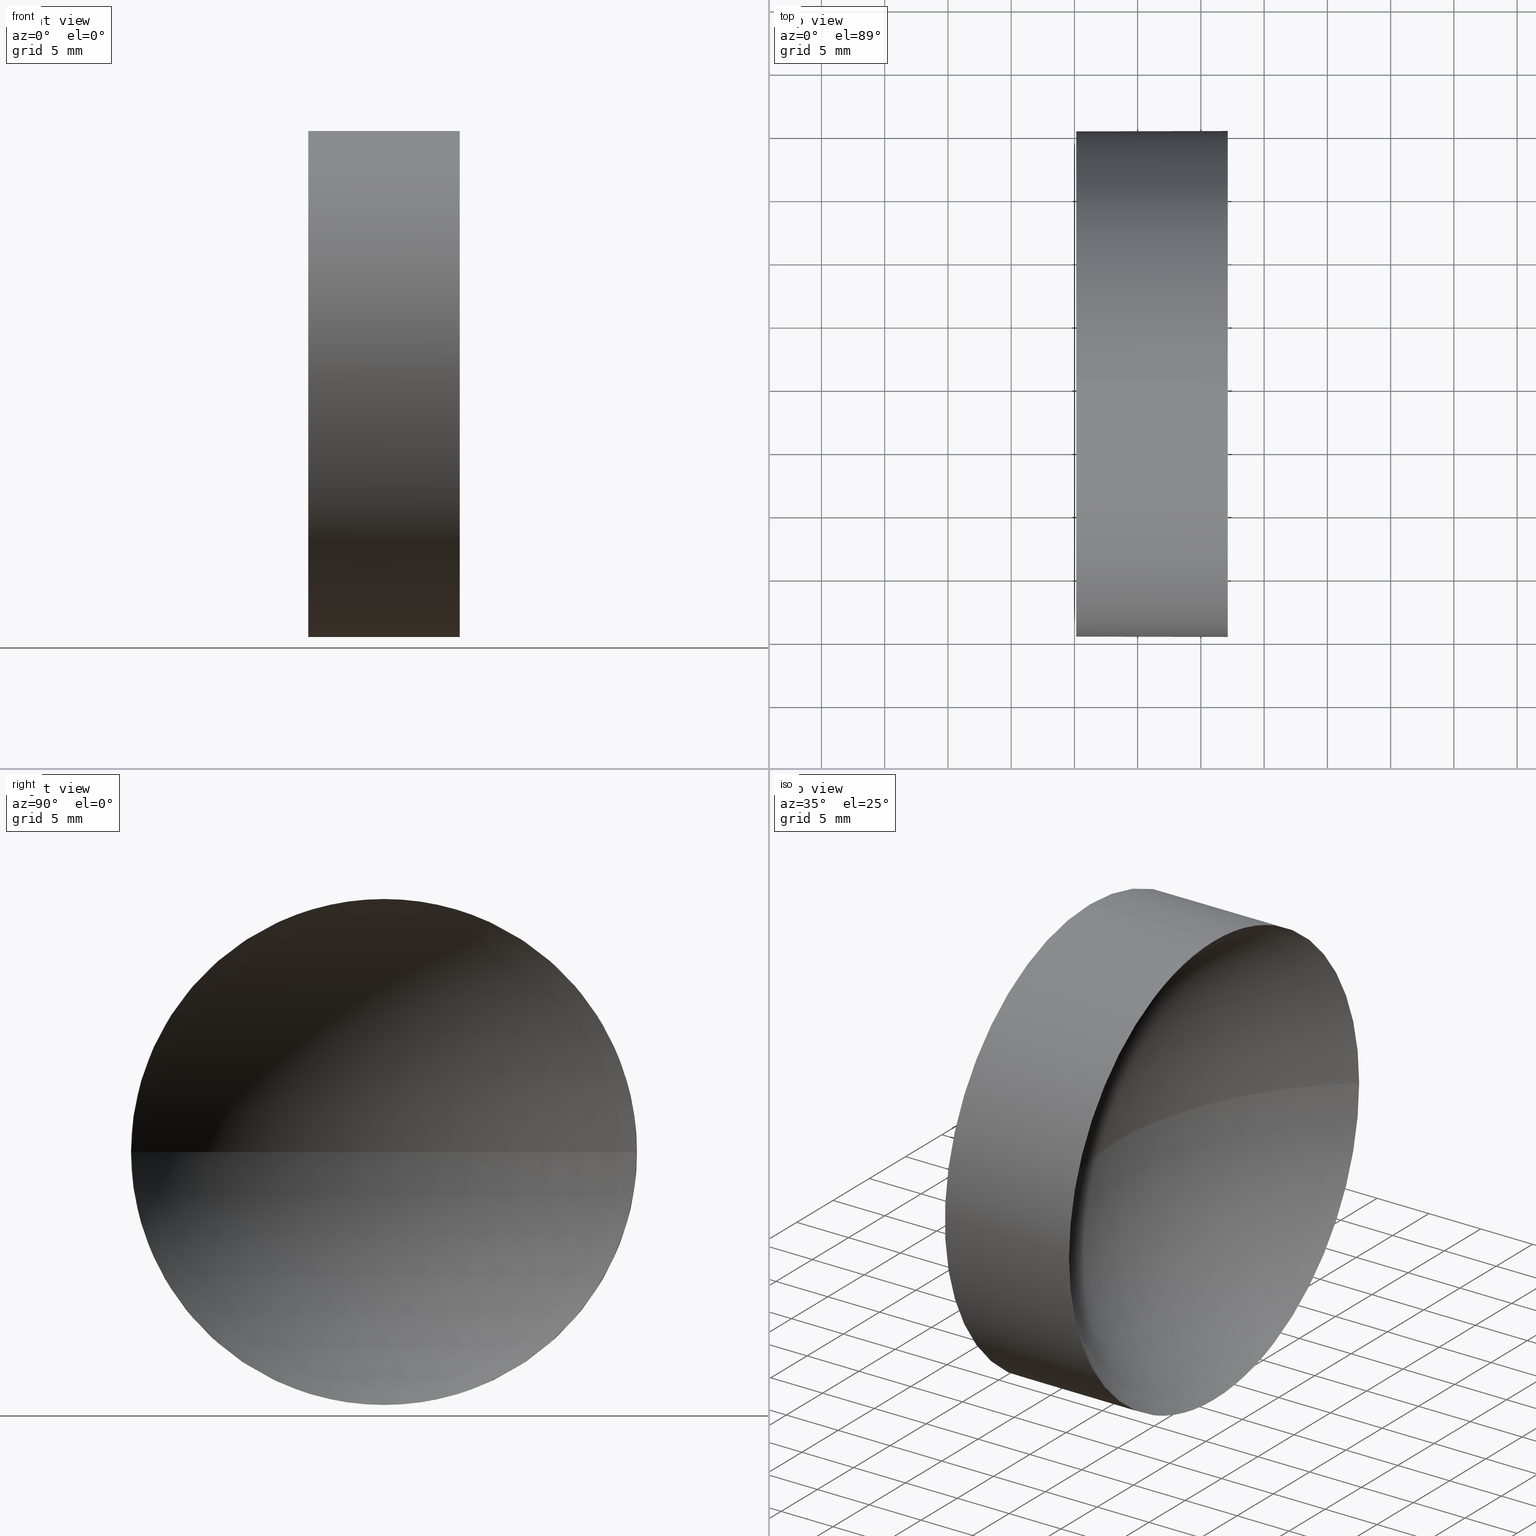
[diagram: canonical four-view strip — front | top / right | iso, engineering-drawing reading convention]
A machine part, canonical four-view strip (front | top / right | iso — engineering-drawing reading convention). The complete STEP part file that produces these views, byte-faithful:
ISO-10303-21;
HEADER;
FILE_DESCRIPTION (( 'STEP AP214' ),
    '1' );
FILE_NAME ('120044.STEP',
    '2019-06-17T06:40:21',
    ( '' ),
    ( '' ),
    'SwSTEP 2.0',
    'SolidWorks 2016',
    '' );
FILE_SCHEMA (( 'AUTOMOTIVE_DESIGN' ));
ENDSEC;

DATA;
#1 = CARTESIAN_POINT ( 'NONE',  ( 143.4842728140176900, 65.22153625845356800, 0.0000000000000000000 ) ) ;
#2 = PRESENTATION_LAYER_ASSIGNMENT (  '', '', ( #108 ) ) ;
#3 = ORIENTED_EDGE ( 'NONE', *, *, #91, .T. ) ;
#4 = DIRECTION ( 'NONE',  ( 0.0000000000000000000, 0.0000000000000000000, -1.000000000000000000 ) ) ;
#5 = DIRECTION ( 'NONE',  ( 0.0000000000000000000, 0.0000000000000000000, 1.000000000000000000 ) ) ;
#6 = ADVANCED_FACE ( 'NONE', ( #166 ), #178, .F. ) ;
#7 = FACE_OUTER_BOUND ( 'NONE', #183, .T. ) ;
#8 = UNCERTAINTY_MEASURE_WITH_UNIT (LENGTH_MEASURE( 1.000000000000000100E-005 ), #143, 'distance_accuracy_value', 'NONE');
#9 = CIRCLE ( 'NONE', #176, 19.99999999999998900 ) ;
#10 = CLOSED_SHELL ( 'NONE', ( #47, #6, #179, #98, #88 ) ) ;
#11 = SHAPE_DEFINITION_REPRESENTATION ( #21, #157 ) ;
#12 = CARTESIAN_POINT ( 'NONE',  ( 143.4842728140176900, 65.22153625845356800, 0.0000000000000000000 ) ) ;
#13 = VERTEX_POINT ( 'NONE', #185 ) ;
#14 = AXIS2_PLACEMENT_3D ( 'NONE', #170, #42, #84 ) ;
#15 = DIRECTION ( 'NONE',  ( 0.0000000000000000000, 0.0000000000000000000, 1.000000000000000000 ) ) ;
#16 = CARTESIAN_POINT ( 'NONE',  ( 115.1442728140176700, 65.22153625845356800, 0.0000000000000000000 ) ) ;
#17 = FILL_AREA_STYLE_COLOUR ( '', #40 ) ;
#18 = VERTEX_POINT ( 'NONE', #125 ) ;
#19 = DIRECTION ( 'NONE',  ( 0.0000000000000000000, 0.0000000000000000000, 1.000000000000000000 ) ) ;
#20 =( NAMED_UNIT ( * ) SI_UNIT ( $, .STERADIAN. ) SOLID_ANGLE_UNIT ( ) );
#21 = PRODUCT_DEFINITION_SHAPE ( 'NONE', 'NONE',  #23 ) ;
#22 = EDGE_CURVE ( 'NONE', #126, #138, #29, .T. ) ;
#23 = PRODUCT_DEFINITION ( 'δ֪', '', #89, #135 ) ;
#24 = EDGE_CURVE ( 'NONE', #64, #52, #163, .T. ) ;
#25 = ORIENTED_EDGE ( 'NONE', *, *, #65, .F. ) ;
#26 = EDGE_LOOP ( 'NONE', ( #77, #120, #106, #25 ) ) ;
#27 = EDGE_LOOP ( 'NONE', ( #150, #94 ) ) ;
#28 = AXIS2_PLACEMENT_3D ( 'NONE', #128, #155, #15 ) ;
#29 = LINE ( 'NONE', #136, #62 ) ;
#30 = PRODUCT_CONTEXT ( 'NONE', #73, 'mechanical' ) ;
#31 = CARTESIAN_POINT ( 'NONE',  ( 143.4842728140176900, 65.22153625845356800, 0.0000000000000000000 ) ) ;
#32 = APPLICATION_CONTEXT ( 'automotive_design' ) ;
#33 = PRESENTATION_STYLE_ASSIGNMENT (( #70 ) ) ;
#34 = ORIENTED_EDGE ( 'NONE', *, *, #76, .T. ) ;
#35 = AXIS2_PLACEMENT_3D ( 'NONE', #66, #169, #154 ) ;
#36 = COLOUR_RGB ( '',1.000000000000000000, 1.000000000000000000, 1.000000000000000000 ) ;
#37 = MECHANICAL_DESIGN_GEOMETRIC_PRESENTATION_REPRESENTATION (  '', ( #108 ), #57 ) ;
#38 = CIRCLE ( 'NONE', #35, 19.99999999999998900 ) ;
#39 = DIRECTION ( 'NONE',  ( -1.000000000000000000, -0.0000000000000000000, -0.0000000000000000000 ) ) ;
#40 = COLOUR_RGB ( '',1.000000000000000000, 1.000000000000000000, 1.000000000000000000 ) ;
#41 = AXIS2_PLACEMENT_3D ( 'NONE', #51, #39, #5 ) ;
#42 = DIRECTION ( 'NONE',  ( 1.000000000000000000, 0.0000000000000000000, 0.0000000000000000000 ) ) ;
#43 =( NAMED_UNIT ( * ) SI_UNIT ( $, .STERADIAN. ) SOLID_ANGLE_UNIT ( ) );
#44 = ORIENTED_EDGE ( 'NONE', *, *, #24, .T. ) ;
#45 = DIRECTION ( 'NONE',  ( 0.0000000000000000000, -1.224646799147353200E-016, 1.000000000000000000 ) ) ;
#46 = DIRECTION ( 'NONE',  ( 0.0000000000000000000, -1.000000000000000000, -1.224646799147353000E-016 ) ) ;
#47 = ADVANCED_FACE ( 'NONE', ( #92 ), #86, .T. ) ;
#48 = FACE_OUTER_BOUND ( 'NONE', #156, .T. ) ;
#49 = AXIS2_PLACEMENT_3D ( 'NONE', #104, #130, #102 ) ;
#50 = ORIENTED_EDGE ( 'NONE', *, *, #112, .T. ) ;
#51 = CARTESIAN_POINT ( 'NONE',  ( 103.2333421658140700, 65.22153625845356800, 0.0000000000000000000 ) ) ;
#52 = VERTEX_POINT ( 'NONE', #55 ) ;
#53 = DIRECTION ( 'NONE',  ( 0.0000000000000000000, 0.0000000000000000000, 1.000000000000000000 ) ) ;
#54 =( GEOMETRIC_REPRESENTATION_CONTEXT ( 3 ) GLOBAL_UNCERTAINTY_ASSIGNED_CONTEXT ( ( #180 ) ) GLOBAL_UNIT_ASSIGNED_CONTEXT ( ( #87, #175, #43 ) ) REPRESENTATION_CONTEXT ( 'NONE', 'WORKASPACE' ) );
#55 = CARTESIAN_POINT ( 'NONE',  ( 115.1442728140176700, 65.22153625845356800, 19.99999999999998900 ) ) ;
#56 = DIRECTION ( 'NONE',  ( 0.0000000000000000000, 0.0000000000000000000, 1.000000000000000000 ) ) ;
#57 =( GEOMETRIC_REPRESENTATION_CONTEXT ( 3 ) GLOBAL_UNCERTAINTY_ASSIGNED_CONTEXT ( ( #142 ) ) GLOBAL_UNIT_ASSIGNED_CONTEXT ( ( #72, #116, #20 ) ) REPRESENTATION_CONTEXT ( 'NONE', 'WORKASPACE' ) );
#58 = FILL_AREA_STYLE ('',( #17 ) ) ;
#59 = CARTESIAN_POINT ( 'NONE',  ( 0.0000000000000000000, 0.0000000000000000000, 0.0000000000000000000 ) ) ;
#60 = ORIENTED_EDGE ( 'NONE', *, *, #112, .F. ) ;
#61 = CARTESIAN_POINT ( 'NONE',  ( 143.4842728140176900, 65.22153625845356800, 0.0000000000000000000 ) ) ;
#62 = VECTOR ( 'NONE', #96, 1000.000000000000000 ) ;
#63 = ORIENTED_EDGE ( 'NONE', *, *, #129, .F. ) ;
#64 = VERTEX_POINT ( 'NONE', #152 ) ;
#65 = EDGE_CURVE ( 'NONE', #126, #123, #9, .T. ) ;
#66 = CARTESIAN_POINT ( 'NONE',  ( 127.1225614120891100, 65.22153625845356800, 0.0000000000000000000 ) ) ;
#67 = ORIENTED_EDGE ( 'NONE', *, *, #83, .T. ) ;
#68 = AXIS2_PLACEMENT_3D ( 'NONE', #16, #74, #19 ) ;
#69 = CARTESIAN_POINT ( 'NONE',  ( 115.1442728140176700, 65.22153625845356800, -19.99999999999998900 ) ) ;
#70 = SURFACE_STYLE_USAGE ( .BOTH. , #158 ) ;
#71 = SURFACE_STYLE_FILL_AREA ( #118 ) ;
#72 =( LENGTH_UNIT ( ) NAMED_UNIT ( * ) SI_UNIT ( .MILLI., .METRE. ) );
#73 = APPLICATION_CONTEXT ( 'automotive_design' ) ;
#74 = DIRECTION ( 'NONE',  ( -1.000000000000000000, -0.0000000000000000000, -0.0000000000000000000 ) ) ;
#75 =( GEOMETRIC_REPRESENTATION_CONTEXT ( 3 ) GLOBAL_UNCERTAINTY_ASSIGNED_CONTEXT ( ( #8 ) ) GLOBAL_UNIT_ASSIGNED_CONTEXT ( ( #143, #103, #159 ) ) REPRESENTATION_CONTEXT ( 'NONE', 'WORKASPACE' ) );
#76 = EDGE_CURVE ( 'NONE', #18, #126, #171, .T. ) ;
#77 = ORIENTED_EDGE ( 'NONE', *, *, #76, .F. ) ;
#78 = ORIENTED_EDGE ( 'NONE', *, *, #22, .F. ) ;
#79 = DIRECTION ( 'NONE',  ( 0.0000000000000000000, -1.000000000000000000, 0.0000000000000000000 ) ) ;
#80 = DIRECTION ( 'NONE',  ( 0.0000000000000000000, 0.0000000000000000000, 1.000000000000000000 ) ) ;
#81 = PLANE ( 'NONE',  #14 ) ;
#82 = AXIS2_PLACEMENT_3D ( 'NONE', #61, #45, #46 ) ;
#83 = EDGE_CURVE ( 'NONE', #123, #64, #38, .T. ) ;
#84 = DIRECTION ( 'NONE',  ( 0.0000000000000000000, 0.0000000000000000000, -1.000000000000000000 ) ) ;
#85 = CIRCLE ( 'NONE', #49, 19.99999999999998900 ) ;
#86 = CYLINDRICAL_SURFACE ( 'NONE', #109, 19.99999999999998900 ) ;
#87 =( LENGTH_UNIT ( ) NAMED_UNIT ( * ) SI_UNIT ( .MILLI., .METRE. ) );
#88 = ADVANCED_FACE ( 'NONE', ( #114 ), #81, .F. ) ;
#89 = PRODUCT_DEFINITION_FORMATION_WITH_SPECIFIED_SOURCE ( '�κ�', '', #167, .NOT_KNOWN. ) ;
#90 = APPLICATION_PROTOCOL_DEFINITION ( 'draft international standard', 'automotive_design', 1998, #73 ) ;
#91 = EDGE_CURVE ( 'NONE', #123, #13, #132, .T. ) ;
#92 = FACE_OUTER_BOUND ( 'NONE', #110, .T. ) ;
#93 = MANIFOLD_SOLID_BREP ( '��ת1', #10 ) ;
#94 = ORIENTED_EDGE ( 'NONE', *, *, #146, .T. ) ;
#95 = AXIS2_PLACEMENT_3D ( 'NONE', #59, #160, #174 ) ;
#96 = DIRECTION ( 'NONE',  ( -1.000000000000000000, -0.0000000000000000000, -0.0000000000000000000 ) ) ;
#97 = CARTESIAN_POINT ( 'NONE',  ( 103.2333421658140700, 65.22153625845356800, 19.99999999999998900 ) ) ;
#98 = ADVANCED_FACE ( 'NONE', ( #48 ), #148, .T. ) ;
#99 = SPHERICAL_SURFACE ( 'NONE', #127, 25.83999999999999600 ) ;
#100 = VECTOR ( 'NONE', #111, 1000.000000000000000 ) ;
#101 = DIRECTION ( 'NONE',  ( -1.000000000000000000, -0.0000000000000000000, -0.0000000000000000000 ) ) ;
#102 = DIRECTION ( 'NONE',  ( 0.0000000000000000000, 0.0000000000000000000, 1.000000000000000000 ) ) ;
#103 =( NAMED_UNIT ( * ) PLANE_ANGLE_UNIT ( ) SI_UNIT ( $, .RADIAN. ) );
#104 = CARTESIAN_POINT ( 'NONE',  ( 127.1225614120891100, 65.22153625845356800, 0.0000000000000000000 ) ) ;
#105 = PRODUCT_RELATED_PRODUCT_CATEGORY ( 'part', '', ( #167 ) ) ;
#106 = ORIENTED_EDGE ( 'NONE', *, *, #91, .F. ) ;
#107 = EDGE_CURVE ( 'NONE', #18, #13, #177, .T. ) ;
#108 = STYLED_ITEM ( 'NONE', ( #33 ), #157 ) ;
#109 = AXIS2_PLACEMENT_3D ( 'NONE', #139, #101, #56 ) ;
#110 = EDGE_LOOP ( 'NONE', ( #34, #147, #63, #164, #50 ) ) ;
#111 = DIRECTION ( 'NONE',  ( -1.000000000000000000, -0.0000000000000000000, -0.0000000000000000000 ) ) ;
#112 = EDGE_CURVE ( 'NONE', #64, #18, #85, .T. ) ;
#113 = DIRECTION ( 'NONE',  ( -1.000000000000000000, -0.0000000000000000000, -0.0000000000000000000 ) ) ;
#114 = FACE_OUTER_BOUND ( 'NONE', #27, .T. ) ;
#115 = DIRECTION ( 'NONE',  ( 0.0000000000000000000, 0.0000000000000000000, 1.000000000000000000 ) ) ;
#116 =( NAMED_UNIT ( * ) PLANE_ANGLE_UNIT ( ) SI_UNIT ( $, .RADIAN. ) );
#117 = APPLICATION_PROTOCOL_DEFINITION ( 'draft international standard', 'automotive_design', 1998, #32 ) ;
#118 = FILL_AREA_STYLE ('',( #151 ) ) ;
#119 = CIRCLE ( 'NONE', #68, 19.99999999999998900 ) ;
#120 = ORIENTED_EDGE ( 'NONE', *, *, #107, .T. ) ;
#121 = AXIS2_PLACEMENT_3D ( 'NONE', #31, #4, #173 ) ;
#122 = AXIS2_PLACEMENT_3D ( 'NONE', #137, #186, #53 ) ;
#123 = VERTEX_POINT ( 'NONE', #172 ) ;
#124 = DIRECTION ( 'NONE',  ( 0.0000000000000000000, 0.0000000000000000000, 1.000000000000000000 ) ) ;
#125 = CARTESIAN_POINT ( 'NONE',  ( 127.1225614120891100, 85.22153625845358200, 2.449293598294706500E-015 ) ) ;
#126 = VERTEX_POINT ( 'NONE', #144 ) ;
#127 = AXIS2_PLACEMENT_3D ( 'NONE', #1, #115, #161 ) ;
#128 = CARTESIAN_POINT ( 'NONE',  ( 115.1442728140176700, 65.22153625845356800, 0.0000000000000000000 ) ) ;
#129 = EDGE_CURVE ( 'NONE', #52, #138, #119, .T. ) ;
#130 = DIRECTION ( 'NONE',  ( -1.000000000000000000, -0.0000000000000000000, -0.0000000000000000000 ) ) ;
#131 = ORIENTED_EDGE ( 'NONE', *, *, #146, .F. ) ;
#132 = CIRCLE ( 'NONE', #121, 25.84000000000000300 ) ;
#133 = STYLED_ITEM ( 'NONE', ( #184 ), #93 ) ;
#134 = ORIENTED_EDGE ( 'NONE', *, *, #107, .F. ) ;
#135 = PRODUCT_DEFINITION_CONTEXT ( 'detailed design', #32, 'design' ) ;
#136 = CARTESIAN_POINT ( 'NONE',  ( 103.2333421658140700, 65.22153625845356800, -19.99999999999998900 ) ) ;
#137 = CARTESIAN_POINT ( 'NONE',  ( 127.1225614120891100, 65.22153625845356800, 0.0000000000000000000 ) ) ;
#138 = VERTEX_POINT ( 'NONE', #69 ) ;
#139 = CARTESIAN_POINT ( 'NONE',  ( 103.2333421658140700, 65.22153625845356800, 0.0000000000000000000 ) ) ;
#140 = SURFACE_SIDE_STYLE ('',( #71 ) ) ;
#141 = SURFACE_STYLE_FILL_AREA ( #58 ) ;
#142 = UNCERTAINTY_MEASURE_WITH_UNIT (LENGTH_MEASURE( 1.000000000000000100E-005 ), #72, 'distance_accuracy_value', 'NONE');
#143 =( LENGTH_UNIT ( ) NAMED_UNIT ( * ) SI_UNIT ( .MILLI., .METRE. ) );
#144 = CARTESIAN_POINT ( 'NONE',  ( 127.1225614120891100, 65.22153625845356800, -19.99999999999998900 ) ) ;
#145 = SURFACE_STYLE_USAGE ( .BOTH. , #140 ) ;
#146 = EDGE_CURVE ( 'NONE', #138, #52, #182, .T. ) ;
#147 = ORIENTED_EDGE ( 'NONE', *, *, #22, .T. ) ;
#148 = CYLINDRICAL_SURFACE ( 'NONE', #41, 19.99999999999998900 ) ;
#149 = PRESENTATION_LAYER_ASSIGNMENT (  '', '', ( #133 ) ) ;
#150 = ORIENTED_EDGE ( 'NONE', *, *, #129, .T. ) ;
#151 = FILL_AREA_STYLE_COLOUR ( '', #36 ) ;
#152 = CARTESIAN_POINT ( 'NONE',  ( 127.1225614120891100, 65.22153625845356800, 19.99999999999998900 ) ) ;
#153 = AXIS2_PLACEMENT_3D ( 'NONE', #12, #80, #79 ) ;
#154 = DIRECTION ( 'NONE',  ( 0.0000000000000000000, 0.0000000000000000000, 1.000000000000000000 ) ) ;
#155 = DIRECTION ( 'NONE',  ( -1.000000000000000000, -0.0000000000000000000, -0.0000000000000000000 ) ) ;
#156 = EDGE_LOOP ( 'NONE', ( #78, #165, #67, #44, #131 ) ) ;
#157 = ADVANCED_BREP_SHAPE_REPRESENTATION ( '120044', ( #93, #95 ), #75 ) ;
#158 = SURFACE_SIDE_STYLE ('',( #141 ) ) ;
#159 =( NAMED_UNIT ( * ) SI_UNIT ( $, .STERADIAN. ) SOLID_ANGLE_UNIT ( ) );
#160 = DIRECTION ( 'NONE',  ( 0.0000000000000000000, 0.0000000000000000000, 1.000000000000000000 ) ) ;
#161 = DIRECTION ( 'NONE',  ( 0.0000000000000000000, -1.000000000000000000, 0.0000000000000000000 ) ) ;
#162 = MECHANICAL_DESIGN_GEOMETRIC_PRESENTATION_REPRESENTATION (  '', ( #133 ), #54 ) ;
#163 = LINE ( 'NONE', #97, #100 ) ;
#164 = ORIENTED_EDGE ( 'NONE', *, *, #24, .F. ) ;
#165 = ORIENTED_EDGE ( 'NONE', *, *, #65, .T. ) ;
#166 = FACE_OUTER_BOUND ( 'NONE', #26, .T. ) ;
#167 = PRODUCT ( '120044', '120044', '', ( #30 ) ) ;
#168 = CARTESIAN_POINT ( 'NONE',  ( 127.1225614120891100, 65.22153625845356800, 0.0000000000000000000 ) ) ;
#169 = DIRECTION ( 'NONE',  ( -1.000000000000000000, -0.0000000000000000000, -0.0000000000000000000 ) ) ;
#170 = CARTESIAN_POINT ( 'NONE',  ( 115.1442728140176700, 65.22153625845356800, 0.0000000000000000000 ) ) ;
#171 = CIRCLE ( 'NONE', #122, 19.99999999999998900 ) ;
#172 = CARTESIAN_POINT ( 'NONE',  ( 127.1225614120891100, 45.22153625845357500, 0.0000000000000000000 ) ) ;
#173 = DIRECTION ( 'NONE',  ( -1.000000000000000000, 0.0000000000000000000, 0.0000000000000000000 ) ) ;
#174 = DIRECTION ( 'NONE',  ( 1.000000000000000000, 0.0000000000000000000, 0.0000000000000000000 ) ) ;
#175 =( NAMED_UNIT ( * ) PLANE_ANGLE_UNIT ( ) SI_UNIT ( $, .RADIAN. ) );
#176 = AXIS2_PLACEMENT_3D ( 'NONE', #168, #113, #124 ) ;
#177 = CIRCLE ( 'NONE', #82, 25.83999999999999600 ) ;
#178 = SPHERICAL_SURFACE ( 'NONE', #153, 25.83999999999999600 ) ;
#179 = ADVANCED_FACE ( 'NONE', ( #7 ), #99, .F. ) ;
#180 = UNCERTAINTY_MEASURE_WITH_UNIT (LENGTH_MEASURE( 1.000000000000000100E-005 ), #87, 'distance_accuracy_value', 'NONE');
#181 = ORIENTED_EDGE ( 'NONE', *, *, #83, .F. ) ;
#182 = CIRCLE ( 'NONE', #28, 19.99999999999998900 ) ;
#183 = EDGE_LOOP ( 'NONE', ( #134, #60, #181, #3 ) ) ;
#184 = PRESENTATION_STYLE_ASSIGNMENT (( #145 ) ) ;
#185 = CARTESIAN_POINT ( 'NONE',  ( 117.6442728140176800, 65.22153625845356800, 0.0000000000000000000 ) ) ;
#186 = DIRECTION ( 'NONE',  ( -1.000000000000000000, -0.0000000000000000000, -0.0000000000000000000 ) ) ;
ENDSEC;
END-ISO-10303-21;
